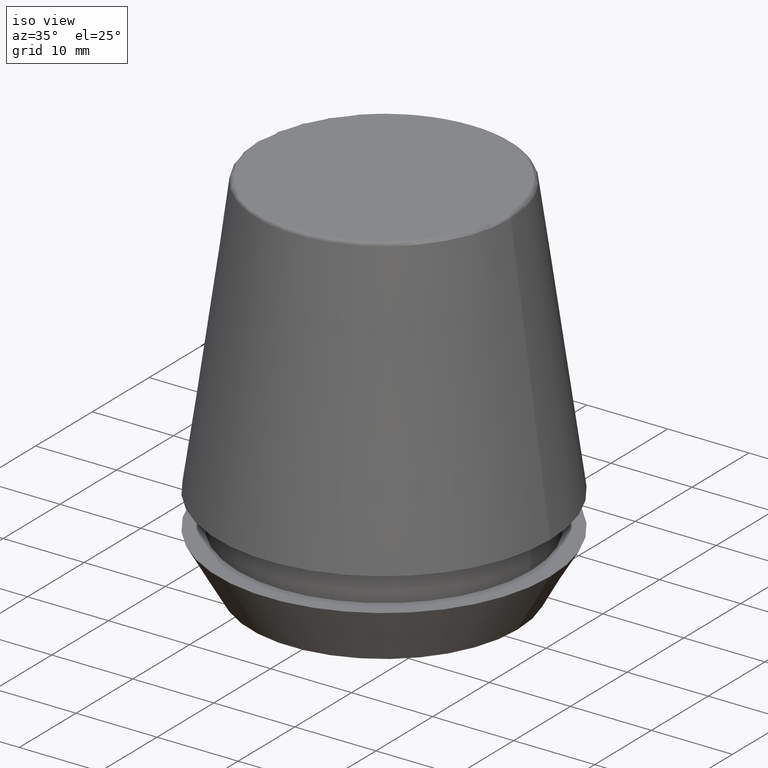
[diagram: clean part render]
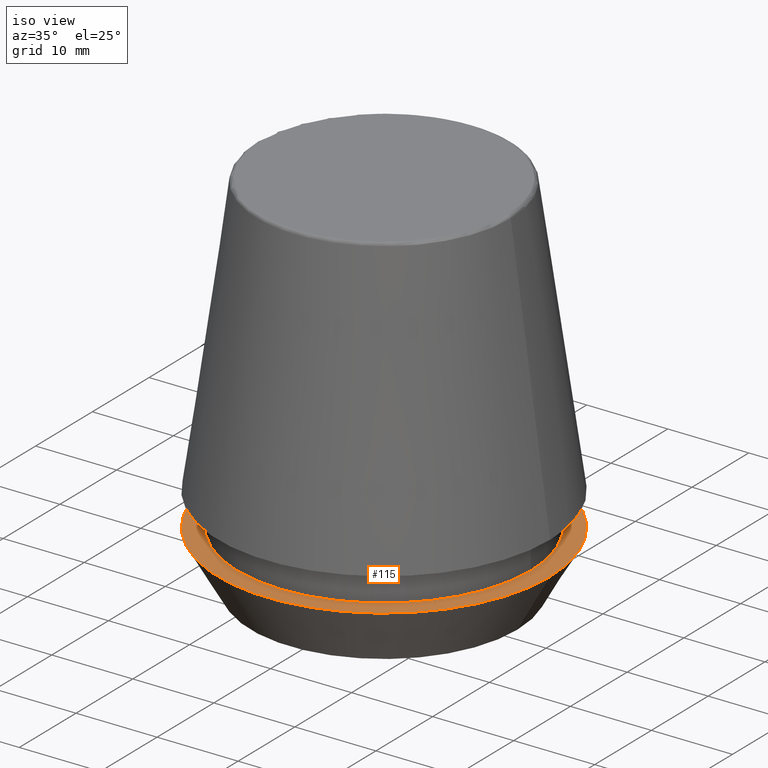
[diagram: same view with one face highlighted and labeled with its STEP entity id]
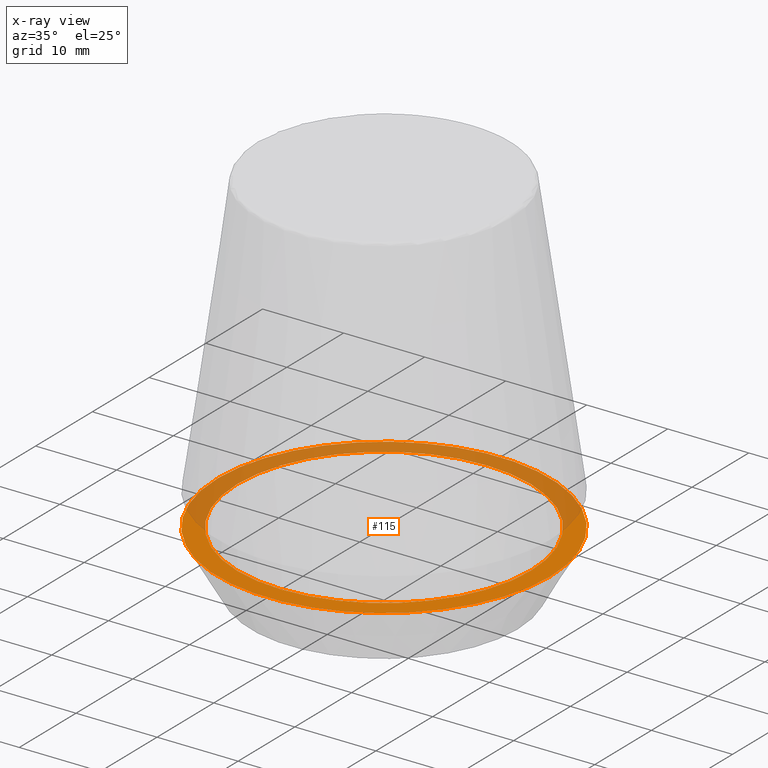
[diagram: x-ray of the same camera — body ghosted, the highlighted face saturated]
A machine part, iso view. The second image highlights one B-rep face of the part: STEP entity #115.
The next image is the same camera in x-ray: the body ghosted, the highlighted face saturated — about 47% of this face is hidden behind the body in this view.
In plain terms, the highlighted planar face has unit normal (0, 0, -1).
Its self-contained STEP definition (entity closure, byte-faithful):
#2 = DIRECTION ( 'NONE',  ( -0.0000000000000000000, -0.0000000000000000000, 1.000000000000000000 ) ) ;
#11 = ORIENTED_EDGE ( 'NONE', *, *, #182, .F. ) ;
#12 = FACE_OUTER_BOUND ( 'NONE', #85, .T. ) ;
#14 = AXIS2_PLACEMENT_3D ( 'NONE', #184, #382, #358 ) ;
#42 = DIRECTION ( 'NONE',  ( -1.000000000000000000, 0.0000000000000000000, -0.0000000000000000000 ) ) ;
#50 = CARTESIAN_POINT ( 'NONE',  ( 18.10000000000000100, 0.0000000000000000000, 6.999999999999999100 ) ) ;
#66 = FACE_BOUND ( 'NONE', #87, .T. ) ;
#85 = EDGE_LOOP ( 'NONE', ( #238, #151 ) ) ;
#86 = DIRECTION ( 'NONE',  ( 1.000000000000000000, 0.0000000000000000000, 0.0000000000000000000 ) ) ;
#87 = EDGE_LOOP ( 'NONE', ( #11, #93 ) ) ;
#93 = ORIENTED_EDGE ( 'NONE', *, *, #113, .F. ) ;
#97 = DIRECTION ( 'NONE',  ( -0.0000000000000000000, -0.0000000000000000000, 1.000000000000000000 ) ) ;
#113 = EDGE_CURVE ( 'NONE', #255, #191, #160, .T. ) ;
#115 = ADVANCED_FACE ( 'NONE', ( #66, #12 ), #311, .F. ) ;
#127 = CIRCLE ( 'NONE', #272, 18.10000000000000100 ) ;
#131 = DIRECTION ( 'NONE',  ( 1.000000000000000000, 0.0000000000000000000, 0.0000000000000000000 ) ) ;
#140 = DIRECTION ( 'NONE',  ( -0.0000000000000000000, -0.0000000000000000000, 1.000000000000000000 ) ) ;
#151 = ORIENTED_EDGE ( 'NONE', *, *, #303, .T. ) ;
#153 = DIRECTION ( 'NONE',  ( 1.000000000000000000, 0.0000000000000000000, 0.0000000000000000000 ) ) ;
#155 = EDGE_CURVE ( 'NONE', #188, #273, #379, .T. ) ;
#156 = CARTESIAN_POINT ( 'NONE',  ( 0.0000000000000000000, 0.0000000000000000000, 6.999999999999999100 ) ) ;
#160 = CIRCLE ( 'NONE', #258, 18.10000000000000100 ) ;
#182 = EDGE_CURVE ( 'NONE', #191, #255, #127, .T. ) ;
#184 = CARTESIAN_POINT ( 'NONE',  ( 0.0000000000000000000, 0.0000000000000000000, 7.000000000000006200 ) ) ;
#188 = VERTEX_POINT ( 'NONE', #195 ) ;
#191 = VERTEX_POINT ( 'NONE', #50 ) ;
#195 = CARTESIAN_POINT ( 'NONE',  ( 20.50000000000000000, 0.0000000000000000000, 7.000000000000006200 ) ) ;
#238 = ORIENTED_EDGE ( 'NONE', *, *, #155, .T. ) ;
#244 = DIRECTION ( 'NONE',  ( 0.0000000000000000000, 0.0000000000000000000, -1.000000000000000000 ) ) ;
#255 = VERTEX_POINT ( 'NONE', #331 ) ;
#258 = AXIS2_PLACEMENT_3D ( 'NONE', #156, #97, #131 ) ;
#260 = CARTESIAN_POINT ( 'NONE',  ( -20.50000000000000000, 2.510525938252074100E-015, 7.000000000000006200 ) ) ;
#272 = AXIS2_PLACEMENT_3D ( 'NONE', #321, #140, #153 ) ;
#273 = VERTEX_POINT ( 'NONE', #260 ) ;
#277 = CARTESIAN_POINT ( 'NONE',  ( 0.0000000000000000000, 20.50000000000000000, 7.000000000000002700 ) ) ;
#288 = AXIS2_PLACEMENT_3D ( 'NONE', #296, #2, #86 ) ;
#296 = CARTESIAN_POINT ( 'NONE',  ( 0.0000000000000000000, 0.0000000000000000000, 7.000000000000006200 ) ) ;
#303 = EDGE_CURVE ( 'NONE', #273, #188, #371, .T. ) ;
#311 = PLANE ( 'NONE',  #376 ) ;
#321 = CARTESIAN_POINT ( 'NONE',  ( 0.0000000000000000000, 0.0000000000000000000, 6.999999999999999100 ) ) ;
#331 = CARTESIAN_POINT ( 'NONE',  ( -18.10000000000000100, 2.216610706456709600E-015, 6.999999999999999100 ) ) ;
#358 = DIRECTION ( 'NONE',  ( 1.000000000000000000, 0.0000000000000000000, 0.0000000000000000000 ) ) ;
#371 = CIRCLE ( 'NONE', #288, 20.50000000000000000 ) ;
#376 = AXIS2_PLACEMENT_3D ( 'NONE', #277, #244, #42 ) ;
#379 = CIRCLE ( 'NONE', #14, 20.50000000000000000 ) ;
#382 = DIRECTION ( 'NONE',  ( -0.0000000000000000000, -0.0000000000000000000, 1.000000000000000000 ) ) ;